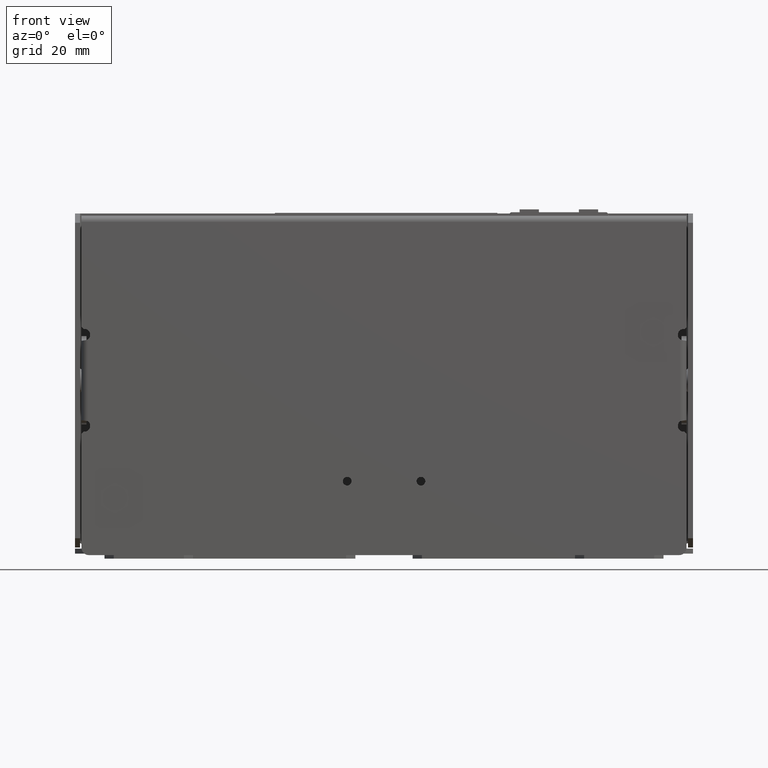
[diagram: clean part render]
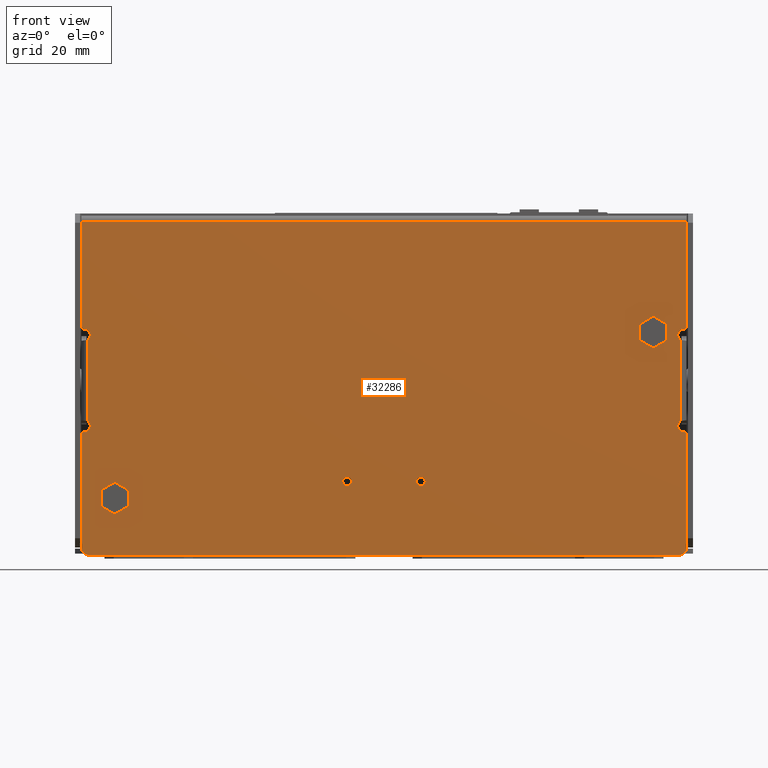
[diagram: same view with one face highlighted and labeled with its STEP entity id]
A machine part, front view. The second image highlights one B-rep face of the part: STEP entity #32286.
In plain terms, the highlighted planar face has unit normal (0, -1, 0).
Its self-contained STEP definition (entity closure, byte-faithful):
#5891 = CARTESIAN_POINT ( 'NONE',  ( 46.35500000000004700, 0.0000000000000000000, -8.318499999999991300 ) ) ;
#5892 = DIRECTION ( 'NONE',  ( 0.0000000000000000000, 1.000000000000000000, 0.0000000000000000000 ) ) ;
#5893 = DIRECTION ( 'NONE',  ( 0.0000000000000000000, 0.0000000000000000000, 1.000000000000000000 ) ) ;
#5931 = CARTESIAN_POINT ( 'NONE',  ( 51.58739999999999500, 0.0000000000000000000, 7.835899999999988100 ) ) ;
#5932 = DIRECTION ( 'NONE',  ( -0.0000000000000000000, -1.000000000000000000, -0.0000000000000000000 ) ) ;
#5933 = DIRECTION ( 'NONE',  ( 0.0000000000000000000, 0.0000000000000000000, 1.000000000000000000 ) ) ;
#5955 = LINE ( 'NONE', #5965, #15580 ) ;
#5965 = CARTESIAN_POINT ( 'NONE',  ( -51.73979999999997400, 0.0000000000000000000, 8.851899999999979200 ) ) ;
#5971 = DIRECTION ( 'NONE',  ( -0.7071067811865084900, 0.0000000000000000000, 0.7071067811865866500 ) ) ;
#5972 = LINE ( 'NONE', #5973, #15577 ) ;
#5973 = CARTESIAN_POINT ( 'NONE',  ( -51.58739999999993800, 0.0000000000000000000, 8.851899999999977500 ) ) ;
#5974 = CARTESIAN_POINT ( 'NONE',  ( -46.35499999999997600, 0.0000000000000000000, 20.25650000000001000 ) ) ;
#5975 = DIRECTION ( 'NONE',  ( 0.0000000000000000000, 1.000000000000000000, 0.0000000000000000000 ) ) ;
#5976 = DIRECTION ( 'NONE',  ( 0.0000000000000000000, 0.0000000000000000000, 1.000000000000000000 ) ) ;
#5980 = DIRECTION ( 'NONE',  ( -1.000000000000000000, 0.0000000000000000000, 1.138269997359821200E-014 ) ) ;
#5981 = CARTESIAN_POINT ( 'NONE',  ( -6.349999999999953500, 0.0000000000000000000, 17.36090000000001200 ) ) ;
#5982 = DIRECTION ( 'NONE',  ( 0.0000000000000000000, 1.000000000000000000, 0.0000000000000000000 ) ) ;
#5983 = DIRECTION ( 'NONE',  ( 0.0000000000000000000, 0.0000000000000000000, 1.000000000000000000 ) ) ;
#5986 = CARTESIAN_POINT ( 'NONE',  ( -46.35499999999997600, 0.0000000000000000000, 20.25650000000001000 ) ) ;
#5987 = DIRECTION ( 'NONE',  ( 0.0000000000000000000, 1.000000000000000000, 0.0000000000000000000 ) ) ;
#5988 = DIRECTION ( 'NONE',  ( 0.0000000000000000000, 0.0000000000000000000, 1.000000000000000000 ) ) ;
#5997 = CARTESIAN_POINT ( 'NONE',  ( 6.350000000000088500, 0.0000000000000000000, 17.36090000000001200 ) ) ;
#5998 = DIRECTION ( 'NONE',  ( 0.0000000000000000000, 1.000000000000000000, 0.0000000000000000000 ) ) ;
#5999 = DIRECTION ( 'NONE',  ( 0.0000000000000000000, 0.0000000000000000000, 1.000000000000000000 ) ) ;
#6003 = CARTESIAN_POINT ( 'NONE',  ( 51.58739999999999500, 0.0000000000000000000, -7.835899999999972100 ) ) ;
#6004 = DIRECTION ( 'NONE',  ( -0.0000000000000000000, -1.000000000000000000, -0.0000000000000000000 ) ) ;
#6005 = DIRECTION ( 'NONE',  ( 0.0000000000000000000, 0.0000000000000000000, 1.000000000000000000 ) ) ;
#9806 = FACE_BOUND ( 'NONE', #16804, .T. ) ;
#9816 = FACE_OUTER_BOUND ( 'NONE', #17278, .T. ) ;
#9818 = FACE_BOUND ( 'NONE', #16916, .T. ) ;
#9820 = PLANE ( 'NONE',  #21740 ) ;
#9824 = FACE_BOUND ( 'NONE', #16969, .T. ) ;
#9826 = CARTESIAN_POINT ( 'NONE',  ( 54.35599999745999600, 0.0000000000000000000, -7.835899999999981000 ) ) ;
#9828 = FACE_BOUND ( 'NONE', #16743, .T. ) ;
#9832 = DIRECTION ( 'NONE',  ( 0.0000000000000000000, 1.000000000000000000, 0.0000000000000000000 ) ) ;
#9834 = DIRECTION ( 'NONE',  ( 0.0000000000000000000, -0.0000000000000000000, 1.000000000000000000 ) ) ;
#11287 = LINE ( 'NONE', #11288, #14919 ) ;
#11288 = CARTESIAN_POINT ( 'NONE',  ( 52.06999999999999300, 0.0000000000000000000, -9.182099999999982400 ) ) ;
#11293 = LINE ( 'NONE', #11294, #14909 ) ;
#11294 = CARTESIAN_POINT ( 'NONE',  ( -52.07000000000000700, 0.0000000000000000000, -54.77509999999992400 ) ) ;
#11298 = DIRECTION ( 'NONE',  ( 6.087683551340985000E-016, 0.0000000000000000000, -1.000000000000000000 ) ) ;
#11304 = DIRECTION ( 'NONE',  ( 1.217536710268197200E-015, 0.0000000000000000000, 1.000000000000000000 ) ) ;
#11602 = LINE ( 'NONE', #11614, #15442 ) ;
#11603 = CARTESIAN_POINT ( 'NONE',  ( -51.58739999999994600, 0.0000000000000000000, 7.835899999999982800 ) ) ;
#11604 = DIRECTION ( 'NONE',  ( -0.0000000000000000000, -1.000000000000000000, -0.0000000000000000000 ) ) ;
#11605 = DIRECTION ( 'NONE',  ( 0.0000000000000000000, 0.0000000000000000000, 1.000000000000000000 ) ) ;
#11614 = CARTESIAN_POINT ( 'NONE',  ( 54.35599999745999600, 0.0000000000000000000, -27.29229999999999000 ) ) ;
#11615 = DIRECTION ( 'NONE',  ( -1.000000000000000000, 0.0000000000000000000, 0.0000000000000000000 ) ) ;
#11646 = LINE ( 'NONE', #11647, #15307 ) ;
#11647 = CARTESIAN_POINT ( 'NONE',  ( -51.73979999999997400, 0.0000000000000000000, -8.851899999999979200 ) ) ;
#11648 = DIRECTION ( 'NONE',  ( 0.7071067811865084900, -0.0000000000000000000, 0.7071067811865866500 ) ) ;
#12141 = ORIENTED_EDGE ( 'NONE', *, *, #37351, .F. ) ;
#12170 = ORIENTED_EDGE ( 'NONE', *, *, #37618, .T. ) ;
#12172 = ORIENTED_EDGE ( 'NONE', *, *, #29485, .T. ) ;
#12215 = ORIENTED_EDGE ( 'NONE', *, *, #29589, .T. ) ;
#12235 = ORIENTED_EDGE ( 'NONE', *, *, #29611, .F. ) ;
#12273 = ORIENTED_EDGE ( 'NONE', *, *, #37503, .T. ) ;
#12285 = ORIENTED_EDGE ( 'NONE', *, *, #37348, .F. ) ;
#12292 = ORIENTED_EDGE ( 'NONE', *, *, #29446, .T. ) ;
#12305 = ORIENTED_EDGE ( 'NONE', *, *, #37350, .T. ) ;
#12312 = ORIENTED_EDGE ( 'NONE', *, *, #37357, .T. ) ;
#12323 = ORIENTED_EDGE ( 'NONE', *, *, #29493, .T. ) ;
#12365 = ORIENTED_EDGE ( 'NONE', *, *, #29323, .F. ) ;
#14403 = CIRCLE ( 'NONE', #14808, 2.095499999999965300 ) ;
#14808 = AXIS2_PLACEMENT_3D ( 'NONE', #5891, #5892, #5893 ) ;
#14909 = VECTOR ( 'NONE', #11304, 1000.000000000000000 ) ;
#14919 = VECTOR ( 'NONE', #11298, 1000.000000000000000 ) ;
#15307 = VECTOR ( 'NONE', #11648, 999.9999999999998900 ) ;
#15438 = AXIS2_PLACEMENT_3D ( 'NONE', #11603, #11604, #11605 ) ;
#15439 = CIRCLE ( 'NONE', #15438, 1.015999999999994200 ) ;
#15442 = VECTOR ( 'NONE', #11615, 1000.000000000000000 ) ;
#15513 = CIRCLE ( 'NONE', #15516, 1.015999999999992700 ) ;
#15516 = AXIS2_PLACEMENT_3D ( 'NONE', #5931, #5932, #5933 ) ;
#15546 = AXIS2_PLACEMENT_3D ( 'NONE', #6003, #6004, #6005 ) ;
#15552 = AXIS2_PLACEMENT_3D ( 'NONE', #5997, #5998, #5999 ) ;
#15555 = CIRCLE ( 'NONE', #15546, 1.015999999999999600 ) ;
#15559 = AXIS2_PLACEMENT_3D ( 'NONE', #5986, #5987, #5988 ) ;
#15564 = CIRCLE ( 'NONE', #15552, 0.7493000000000117300 ) ;
#15567 = CIRCLE ( 'NONE', #15571, 0.7493000000000117300 ) ;
#15571 = AXIS2_PLACEMENT_3D ( 'NONE', #5981, #5982, #5983 ) ;
#15575 = AXIS2_PLACEMENT_3D ( 'NONE', #5974, #5975, #5976 ) ;
#15577 = VECTOR ( 'NONE', #5980, 1000.000000000000000 ) ;
#15580 = VECTOR ( 'NONE', #5971, 999.9999999999998900 ) ;
#15582 = CIRCLE ( 'NONE', #15575, 2.095500000000000400 ) ;
#15592 = CIRCLE ( 'NONE', #15559, 2.095500000000000400 ) ;
#16743 = EDGE_LOOP ( 'NONE', ( #12365, #47647 ) ) ;
#16804 = EDGE_LOOP ( 'NONE', ( #47702, #47800 ) ) ;
#16916 = EDGE_LOOP ( 'NONE', ( #47838, #12285 ) ) ;
#16969 = EDGE_LOOP ( 'NONE', ( #12235, #12141 ) ) ;
#17278 = EDGE_LOOP ( 'NONE', ( #47754, #12323, #12312, #12292, #47789, #12273, #47560, #47698, #12170, #47742, #12172, #47738, #47695, #12305, #47842, #47694, #47572, #47597, #47648, #12215, #47598, #47688 ) ) ;
#17606 = CARTESIAN_POINT ( 'NONE',  ( 46.35500000000004700, 0.0000000000000000000, -8.318499999999991300 ) ) ;
#17608 = DIRECTION ( 'NONE',  ( 0.0000000000000000000, 1.000000000000000000, 0.0000000000000000000 ) ) ;
#17610 = DIRECTION ( 'NONE',  ( 0.0000000000000000000, 0.0000000000000000000, 1.000000000000000000 ) ) ;
#17847 = CARTESIAN_POINT ( 'NONE',  ( -52.06999999999995100, 0.0000000000000000000, 9.182099999999989500 ) ) ;
#17851 = LINE ( 'NONE', #17847, #19272 ) ;
#17867 = DIRECTION ( 'NONE',  ( -2.830930563382647700E-015, 0.0000000000000000000, 1.000000000000000000 ) ) ;
#19272 = VECTOR ( 'NONE', #17867, 1000.000000000000000 ) ;
#19400 = CIRCLE ( 'NONE', #20382, 2.095499999999965300 ) ;
#20382 = AXIS2_PLACEMENT_3D ( 'NONE', #17606, #17608, #17610 ) ;
#21740 = AXIS2_PLACEMENT_3D ( 'NONE', #9826, #9832, #9834 ) ;
#25178 = VECTOR ( 'NONE', #39914, 1000.000000000000000 ) ;
#25244 = AXIS2_PLACEMENT_3D ( 'NONE', #38111, #38112, #38113 ) ;
#25245 = CIRCLE ( 'NONE', #25422, 0.7493000000000117300 ) ;
#25253 = VECTOR ( 'NONE', #38107, 1000.000000000000000 ) ;
#25296 = CIRCLE ( 'NONE', #25896, 1.270000000000007100 ) ;
#25422 = AXIS2_PLACEMENT_3D ( 'NONE', #39604, #39606, #39608 ) ;
#25565 = AXIS2_PLACEMENT_3D ( 'NONE', #38133, #38134, #38135 ) ;
#25779 = AXIS2_PLACEMENT_3D ( 'NONE', #37910, #37911, #37912 ) ;
#25814 = VECTOR ( 'NONE', #39713, 1000.000000000000000 ) ;
#25851 = CIRCLE ( 'NONE', #25779, 1.015999999999994200 ) ;
#25875 = VECTOR ( 'NONE', #38290, 1000.000000000000000 ) ;
#25896 = AXIS2_PLACEMENT_3D ( 'NONE', #38092, #38093, #38094 ) ;
#25902 = CIRCLE ( 'NONE', #25244, 1.269999999999996900 ) ;
#25904 = VECTOR ( 'NONE', #37914, 1000.000000000000000 ) ;
#25913 = VECTOR ( 'NONE', #38282, 1000.000000000000000 ) ;
#26059 = CIRCLE ( 'NONE', #25565, 0.7493000000000117300 ) ;
#26102 = VECTOR ( 'NONE', #38118, 1000.000000000000000 ) ;
#26112 = VECTOR ( 'NONE', #38115, 1000.000000000000000 ) ;
#26141 = VECTOR ( 'NONE', #37931, 1000.000000000000000 ) ;
#29323 = EDGE_CURVE ( 'NONE', #41733, #41753, #25245, .T. ) ;
#29356 = EDGE_CURVE ( 'NONE', #41713, #41739, #39707, .T. ) ;
#29446 = EDGE_CURVE ( 'NONE', #41619, #41984, #39908, .T. ) ;
#29485 = EDGE_CURVE ( 'NONE', #41618, #41723, #25851, .T. ) ;
#29487 = EDGE_CURVE ( 'NONE', #42712, #41723, #37909, .T. ) ;
#29493 = EDGE_CURVE ( 'NONE', #41621, #42341, #37928, .T. ) ;
#29584 = EDGE_CURVE ( 'NONE', #41727, #41711, #25296, .T. ) ;
#29589 = EDGE_CURVE ( 'NONE', #41722, #41713, #38105, .T. ) ;
#29593 = EDGE_CURVE ( 'NONE', #41726, #41722, #25902, .T. ) ;
#29595 = EDGE_CURVE ( 'NONE', #41711, #41726, #38110, .T. ) ;
#29597 = EDGE_CURVE ( 'NONE', #41739, #41617, #38109, .T. ) ;
#29611 = EDGE_CURVE ( 'NONE', #41992, #41993, #26059, .T. ) ;
#29715 = EDGE_CURVE ( 'NONE', #41984, #41622, #38277, .T. ) ;
#29721 = EDGE_CURVE ( 'NONE', #41616, #41618, #38288, .T. ) ;
#30058 = EDGE_CURVE ( 'NONE', #42167, #42147, #19400, .T. ) ;
#30107 = EDGE_CURVE ( 'NONE', #41612, #41727, #17851, .T. ) ;
#32286 = ADVANCED_FACE ( 'NONE', ( #9818, #9806, #9824, #9828, #9816 ), #9820, .T. ) ;
#37320 = EDGE_CURVE ( 'NONE', #42147, #42167, #14403, .T. ) ;
#37334 = EDGE_CURVE ( 'NONE', #41617, #41621, #15513, .T. ) ;
#37347 = EDGE_CURVE ( 'NONE', #41611, #41612, #5955, .T. ) ;
#37348 = EDGE_CURVE ( 'NONE', #42161, #42168, #15582, .T. ) ;
#37350 = EDGE_CURVE ( 'NONE', #41610, #41611, #5972, .T. ) ;
#37351 = EDGE_CURVE ( 'NONE', #41993, #41992, #15567, .T. ) ;
#37352 = EDGE_CURVE ( 'NONE', #42168, #42161, #15592, .T. ) ;
#37355 = EDGE_CURVE ( 'NONE', #41753, #41733, #15564, .T. ) ;
#37357 = EDGE_CURVE ( 'NONE', #42341, #41619, #15555, .T. ) ;
#37503 = EDGE_CURVE ( 'NONE', #41622, #41615, #11287, .T. ) ;
#37505 = EDGE_CURVE ( 'NONE', #41613, #41614, #11293, .T. ) ;
#37603 = EDGE_CURVE ( 'NONE', #42712, #41610, #15439, .T. ) ;
#37607 = EDGE_CURVE ( 'NONE', #41615, #41613, #11602, .T. ) ;
#37618 = EDGE_CURVE ( 'NONE', #41614, #41616, #11646, .T. ) ;
#37901 = CARTESIAN_POINT ( 'NONE',  ( -51.00319999999990700, 0.0000000000000000000, -7.835899999999981000 ) ) ;
#37909 = LINE ( 'NONE', #37901, #25904 ) ;
#37910 = CARTESIAN_POINT ( 'NONE',  ( -51.58739999999994600, 0.0000000000000000000, -7.835899999999982800 ) ) ;
#37911 = DIRECTION ( 'NONE',  ( -0.0000000000000000000, -1.000000000000000000, -0.0000000000000000000 ) ) ;
#37912 = DIRECTION ( 'NONE',  ( 0.0000000000000000000, 0.0000000000000000000, 1.000000000000000000 ) ) ;
#37913 = CARTESIAN_POINT ( 'NONE',  ( 51.00320000000002100, 0.0000000000000000000, -7.835899999999981000 ) ) ;
#37914 = DIRECTION ( 'NONE',  ( 0.0000000000000000000, 0.0000000000000000000, -1.000000000000000000 ) ) ;
#37928 = LINE ( 'NONE', #37913, #26141 ) ;
#37931 = DIRECTION ( 'NONE',  ( 0.0000000000000000000, 0.0000000000000000000, -1.000000000000000000 ) ) ;
#38091 = CARTESIAN_POINT ( 'NONE',  ( 52.07000000000002200, 0.0000000000000000000, 28.79090000000005000 ) ) ;
#38092 = CARTESIAN_POINT ( 'NONE',  ( -50.79999999999999700, 0.0000000000000000000, 28.79090000000005000 ) ) ;
#38093 = DIRECTION ( 'NONE',  ( 0.0000000000000000000, 1.000000000000000000, 0.0000000000000000000 ) ) ;
#38094 = DIRECTION ( 'NONE',  ( 0.0000000000000000000, 0.0000000000000000000, 1.000000000000000000 ) ) ;
#38105 = LINE ( 'NONE', #38091, #25253 ) ;
#38107 = DIRECTION ( 'NONE',  ( -1.415465281691324500E-015, 0.0000000000000000000, -1.000000000000000000 ) ) ;
#38108 = CARTESIAN_POINT ( 'NONE',  ( -50.79999999999999700, 0.0000000000000000000, 30.06090000000005300 ) ) ;
#38109 = LINE ( 'NONE', #38116, #26102 ) ;
#38110 = LINE ( 'NONE', #38108, #26112 ) ;
#38111 = CARTESIAN_POINT ( 'NONE',  ( 50.80000000000001800, 0.0000000000000000000, 28.79090000000000400 ) ) ;
#38112 = DIRECTION ( 'NONE',  ( 0.0000000000000000000, 1.000000000000000000, 0.0000000000000000000 ) ) ;
#38113 = DIRECTION ( 'NONE',  ( 0.0000000000000000000, 0.0000000000000000000, 1.000000000000000000 ) ) ;
#38115 = DIRECTION ( 'NONE',  ( 1.000000000000000000, 0.0000000000000000000, -5.463695987328523500E-016 ) ) ;
#38116 = CARTESIAN_POINT ( 'NONE',  ( 51.58740000000000900, 0.0000000000000000000, 8.851899999999981000 ) ) ;
#38118 = DIRECTION ( 'NONE',  ( -1.000000000000000000, -0.0000000000000000000, -4.553079989440943200E-014 ) ) ;
#38133 = CARTESIAN_POINT ( 'NONE',  ( -6.349999999999953500, 0.0000000000000000000, 17.36090000000001200 ) ) ;
#38134 = DIRECTION ( 'NONE',  ( 0.0000000000000000000, 1.000000000000000000, 0.0000000000000000000 ) ) ;
#38135 = DIRECTION ( 'NONE',  ( 0.0000000000000000000, 0.0000000000000000000, 1.000000000000000000 ) ) ;
#38267 = CARTESIAN_POINT ( 'NONE',  ( 51.73979999999999500, 0.0000000000000000000, -8.851899999999973900 ) ) ;
#38277 = LINE ( 'NONE', #38267, #25913 ) ;
#38280 = CARTESIAN_POINT ( 'NONE',  ( -51.58739999999997400, 0.0000000000000000000, -8.851899999999977500 ) ) ;
#38282 = DIRECTION ( 'NONE',  ( 0.7071067811865327000, 0.0000000000000000000, -0.7071067811865624500 ) ) ;
#38288 = LINE ( 'NONE', #38280, #25875 ) ;
#38290 = DIRECTION ( 'NONE',  ( 1.000000000000000000, -0.0000000000000000000, 1.138269997360080400E-014 ) ) ;
#39604 = CARTESIAN_POINT ( 'NONE',  ( 6.350000000000088500, 0.0000000000000000000, 17.36090000000001200 ) ) ;
#39606 = DIRECTION ( 'NONE',  ( 0.0000000000000000000, 1.000000000000000000, 0.0000000000000000000 ) ) ;
#39608 = DIRECTION ( 'NONE',  ( 0.0000000000000000000, 0.0000000000000000000, 1.000000000000000000 ) ) ;
#39707 = LINE ( 'NONE', #39708, #25814 ) ;
#39708 = CARTESIAN_POINT ( 'NONE',  ( 51.73979999999999500, 0.0000000000000000000, 8.851899999999986300 ) ) ;
#39713 = DIRECTION ( 'NONE',  ( -0.7071067811865327000, -0.0000000000000000000, -0.7071067811865624500 ) ) ;
#39908 = LINE ( 'NONE', #39912, #25178 ) ;
#39912 = CARTESIAN_POINT ( 'NONE',  ( 51.58739999999999500, 0.0000000000000000000, -8.851899999999972100 ) ) ;
#39914 = DIRECTION ( 'NONE',  ( 1.000000000000000000, 0.0000000000000000000, -1.138269997360132100E-014 ) ) ;
#41610 = VERTEX_POINT ( 'NONE', #43027 ) ;
#41611 = VERTEX_POINT ( 'NONE', #43028 ) ;
#41612 = VERTEX_POINT ( 'NONE', #43029 ) ;
#41613 = VERTEX_POINT ( 'NONE', #43030 ) ;
#41614 = VERTEX_POINT ( 'NONE', #43031 ) ;
#41615 = VERTEX_POINT ( 'NONE', #43032 ) ;
#41616 = VERTEX_POINT ( 'NONE', #43033 ) ;
#41617 = VERTEX_POINT ( 'NONE', #43034 ) ;
#41618 = VERTEX_POINT ( 'NONE', #43035 ) ;
#41619 = VERTEX_POINT ( 'NONE', #43036 ) ;
#41621 = VERTEX_POINT ( 'NONE', #43038 ) ;
#41622 = VERTEX_POINT ( 'NONE', #43039 ) ;
#41711 = VERTEX_POINT ( 'NONE', #43047 ) ;
#41713 = VERTEX_POINT ( 'NONE', #43048 ) ;
#41722 = VERTEX_POINT ( 'NONE', #43046 ) ;
#41723 = VERTEX_POINT ( 'NONE', #43057 ) ;
#41726 = VERTEX_POINT ( 'NONE', #43060 ) ;
#41727 = VERTEX_POINT ( 'NONE', #43056 ) ;
#41733 = VERTEX_POINT ( 'NONE', #43065 ) ;
#41739 = VERTEX_POINT ( 'NONE', #43070 ) ;
#41753 = VERTEX_POINT ( 'NONE', #43084 ) ;
#41984 = VERTEX_POINT ( 'NONE', #43213 ) ;
#41992 = VERTEX_POINT ( 'NONE', #43221 ) ;
#41993 = VERTEX_POINT ( 'NONE', #43222 ) ;
#42147 = VERTEX_POINT ( 'NONE', #43317 ) ;
#42161 = VERTEX_POINT ( 'NONE', #43331 ) ;
#42167 = VERTEX_POINT ( 'NONE', #43337 ) ;
#42168 = VERTEX_POINT ( 'NONE', #43338 ) ;
#42341 = VERTEX_POINT ( 'NONE', #43510 ) ;
#42712 = VERTEX_POINT ( 'NONE', #43792 ) ;
#43027 = CARTESIAN_POINT ( 'NONE',  ( -51.58739999999993800, 0.0000000000000000000, 8.851899999999977500 ) ) ;
#43028 = CARTESIAN_POINT ( 'NONE',  ( -51.73979999999997400, 0.0000000000000000000, 8.851899999999979200 ) ) ;
#43029 = CARTESIAN_POINT ( 'NONE',  ( -52.06999999999995100, 0.0000000000000000000, 9.182099999999989500 ) ) ;
#43030 = CARTESIAN_POINT ( 'NONE',  ( -52.06999999999997900, 0.0000000000000000000, -27.29230000000000800 ) ) ;
#43031 = CARTESIAN_POINT ( 'NONE',  ( -52.06999999999995100, 0.0000000000000000000, -9.182099999999989500 ) ) ;
#43032 = CARTESIAN_POINT ( 'NONE',  ( 52.07000000000000700, 0.0000000000000000000, -27.29229999999999700 ) ) ;
#43033 = CARTESIAN_POINT ( 'NONE',  ( -51.73979999999997400, 0.0000000000000000000, -8.851899999999979200 ) ) ;
#43034 = CARTESIAN_POINT ( 'NONE',  ( 51.58740000000000900, 0.0000000000000000000, 8.851899999999981000 ) ) ;
#43035 = CARTESIAN_POINT ( 'NONE',  ( -51.58739999999997400, 0.0000000000000000000, -8.851899999999977500 ) ) ;
#43036 = CARTESIAN_POINT ( 'NONE',  ( 51.58739999999999500, 0.0000000000000000000, -8.851899999999972100 ) ) ;
#43038 = CARTESIAN_POINT ( 'NONE',  ( 51.00320000000002100, 0.0000000000000000000, 7.004656136864741500 ) ) ;
#43039 = CARTESIAN_POINT ( 'NONE',  ( 52.06999999999999300, 0.0000000000000000000, -9.182099999999982400 ) ) ;
#43046 = CARTESIAN_POINT ( 'NONE',  ( 52.07000000000002200, 0.0000000000000000000, 28.79090000000005000 ) ) ;
#43047 = CARTESIAN_POINT ( 'NONE',  ( -50.79999999999999700, 0.0000000000000000000, 30.06090000000005700 ) ) ;
#43048 = CARTESIAN_POINT ( 'NONE',  ( 52.06999999999999300, 0.0000000000000000000, 9.182099999999996600 ) ) ;
#43056 = CARTESIAN_POINT ( 'NONE',  ( -52.07000000000000700, 0.0000000000000000000, 28.79090000000005000 ) ) ;
#43057 = CARTESIAN_POINT ( 'NONE',  ( -51.00319999999991400, 0.0000000000000000000, -7.004656136864767300 ) ) ;
#43060 = CARTESIAN_POINT ( 'NONE',  ( 50.80000000000004700, 0.0000000000000000000, 30.06089999999999700 ) ) ;
#43065 = CARTESIAN_POINT ( 'NONE',  ( 6.350000000000088500, 0.0000000000000000000, 18.11020000000002400 ) ) ;
#43070 = CARTESIAN_POINT ( 'NONE',  ( 51.73979999999999500, 0.0000000000000000000, 8.851899999999986300 ) ) ;
#43084 = CARTESIAN_POINT ( 'NONE',  ( 6.350000000000088500, 0.0000000000000000000, 16.61159999999999900 ) ) ;
#43213 = CARTESIAN_POINT ( 'NONE',  ( 51.73979999999999500, 0.0000000000000000000, -8.851899999999973900 ) ) ;
#43221 = CARTESIAN_POINT ( 'NONE',  ( -6.349999999999953500, 0.0000000000000000000, 18.11020000000002400 ) ) ;
#43222 = CARTESIAN_POINT ( 'NONE',  ( -6.349999999999953500, 0.0000000000000000000, 16.61159999999999900 ) ) ;
#43317 = CARTESIAN_POINT ( 'NONE',  ( 46.35500000000004700, 0.0000000000000000000, -10.41399999999995700 ) ) ;
#43331 = CARTESIAN_POINT ( 'NONE',  ( -46.35499999999997600, 0.0000000000000000000, 18.16100000000001200 ) ) ;
#43337 = CARTESIAN_POINT ( 'NONE',  ( 46.35500000000004700, 0.0000000000000000000, -6.223000000000025600 ) ) ;
#43338 = CARTESIAN_POINT ( 'NONE',  ( -46.35499999999997600, 0.0000000000000000000, 22.35200000000001100 ) ) ;
#43510 = CARTESIAN_POINT ( 'NONE',  ( 51.00320000000002100, -2.168404344971008900E-016, -7.004656136864723800 ) ) ;
#43792 = CARTESIAN_POINT ( 'NONE',  ( -51.00319999999991400, 0.0000000000000000000, 7.004656136864767300 ) ) ;
#47560 = ORIENTED_EDGE ( 'NONE', *, *, #37607, .T. ) ;
#47572 = ORIENTED_EDGE ( 'NONE', *, *, #29584, .T. ) ;
#47597 = ORIENTED_EDGE ( 'NONE', *, *, #29595, .T. ) ;
#47598 = ORIENTED_EDGE ( 'NONE', *, *, #29356, .T. ) ;
#47647 = ORIENTED_EDGE ( 'NONE', *, *, #37355, .F. ) ;
#47648 = ORIENTED_EDGE ( 'NONE', *, *, #29593, .T. ) ;
#47688 = ORIENTED_EDGE ( 'NONE', *, *, #29597, .T. ) ;
#47694 = ORIENTED_EDGE ( 'NONE', *, *, #30107, .T. ) ;
#47695 = ORIENTED_EDGE ( 'NONE', *, *, #37603, .T. ) ;
#47698 = ORIENTED_EDGE ( 'NONE', *, *, #37505, .T. ) ;
#47702 = ORIENTED_EDGE ( 'NONE', *, *, #30058, .F. ) ;
#47738 = ORIENTED_EDGE ( 'NONE', *, *, #29487, .F. ) ;
#47742 = ORIENTED_EDGE ( 'NONE', *, *, #29721, .T. ) ;
#47754 = ORIENTED_EDGE ( 'NONE', *, *, #37334, .T. ) ;
#47789 = ORIENTED_EDGE ( 'NONE', *, *, #29715, .T. ) ;
#47800 = ORIENTED_EDGE ( 'NONE', *, *, #37320, .F. ) ;
#47838 = ORIENTED_EDGE ( 'NONE', *, *, #37352, .F. ) ;
#47842 = ORIENTED_EDGE ( 'NONE', *, *, #37347, .T. ) ;